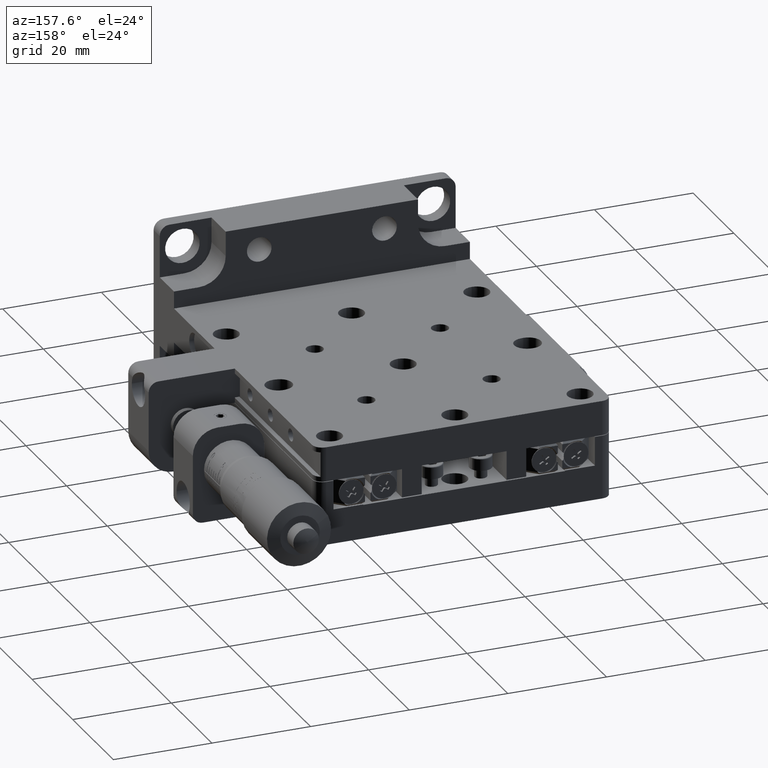
[diagram: clean part render]
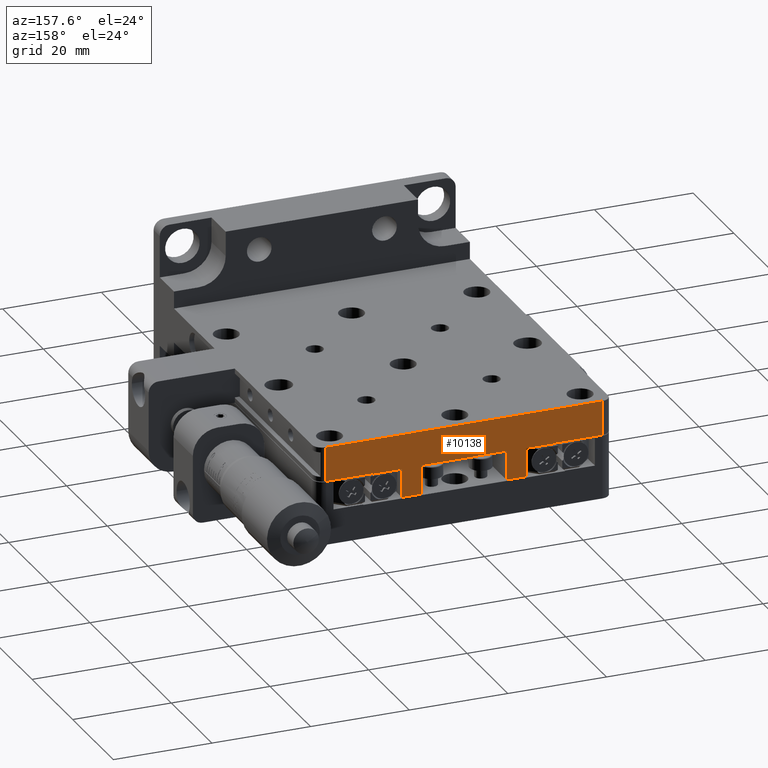
[diagram: same view with one face highlighted and labeled with its STEP entity id]
A machine part, auxiliary view. The second image highlights one B-rep face of the part: STEP entity #10138.
In plain terms, the highlighted planar face has unit normal (-0, 1, -0).
Its self-contained STEP definition (entity closure, byte-faithful):
#151 = VERTEX_POINT ( 'NONE', #15836 ) ;
#286 = VECTOR ( 'NONE', #4870, 1000.000000000000000 ) ;
#699 = CARTESIAN_POINT ( 'NONE',  ( 8.599999999999967700, 69.99999999999998600, -9.399999999999266700 ) ) ;
#899 = LINE ( 'NONE', #29757, #60400 ) ;
#2182 = VECTOR ( 'NONE', #54436, 1000.000000000000000 ) ;
#2881 = ORIENTED_EDGE ( 'NONE', *, *, #8117, .T. ) ;
#3014 = CARTESIAN_POINT ( 'NONE',  ( 27.99999999999986900, 70.00000000000000000, -3.499999999999330800 ) ) ;
#3249 = VERTEX_POINT ( 'NONE', #51164 ) ;
#3605 = EDGE_CURVE ( 'NONE', #24318, #8302, #47497, .T. ) ;
#4330 = VERTEX_POINT ( 'NONE', #10919 ) ;
#4547 = LINE ( 'NONE', #4885, #41151 ) ;
#4870 = DIRECTION ( 'NONE',  ( -1.000000000000000000, 1.026956297779326500E-015, 1.553259876652537500E-015 ) ) ;
#4885 = CARTESIAN_POINT ( 'NONE',  ( -28.00000000000012400, 69.99999999999974400, -6.499999999999231700 ) ) ;
#4995 = LINE ( 'NONE', #19263, #57904 ) ;
#5083 = VERTEX_POINT ( 'NONE', #47189 ) ;
#5163 = LINE ( 'NONE', #15059, #29339 ) ;
#5863 = LINE ( 'NONE', #50956, #52110 ) ;
#6262 = ORIENTED_EDGE ( 'NONE', *, *, #36282, .T. ) ;
#6682 = DIRECTION ( 'NONE',  ( 1.091490082325969300E-015, -1.299185760018475600E-014, -1.000000000000000000 ) ) ;
#8117 = EDGE_CURVE ( 'NONE', #56657, #3249, #46333, .T. ) ;
#8302 = VERTEX_POINT ( 'NONE', #34424 ) ;
#9169 = CARTESIAN_POINT ( 'NONE',  ( 18.59999999999987700, 70.00000000000000000, -3.499999999999314800 ) ) ;
#9301 = CARTESIAN_POINT ( 'NONE',  ( -30.00000000000012800, 70.00000000000000000, 3.500000000000775400 ) ) ;
#9697 = CARTESIAN_POINT ( 'NONE',  ( -30.00000000000012800, 70.00000000000000000, -3.499999999999244600 ) ) ;
#10138 = ADVANCED_FACE ( 'NONE', ( #35751 ), #38160, .T. ) ;
#10919 = CARTESIAN_POINT ( 'NONE',  ( -12.60000000000003300, 69.99999999999998600, -9.399999999999231200 ) ) ;
#12687 = VERTEX_POINT ( 'NONE', #16039 ) ;
#12964 = ORIENTED_EDGE ( 'NONE', *, *, #41318, .T. ) ;
#13732 = VERTEX_POINT ( 'NONE', #42866 ) ;
#13942 = DIRECTION ( 'NONE',  ( 1.091490082325969300E-015, -1.299185760018475600E-014, -1.000000000000000000 ) ) ;
#14262 = DIRECTION ( 'NONE',  ( -3.578595960186216000E-014, 1.299185760018481100E-014, 1.000000000000000000 ) ) ;
#14793 = CARTESIAN_POINT ( 'NONE',  ( 8.599999999999967700, 69.99999999999998600, -9.399999999999266700 ) ) ;
#14836 = DIRECTION ( 'NONE',  ( -1.000000000000000000, 1.026956297779323700E-015, 1.336419442155436600E-015 ) ) ;
#14872 = DIRECTION ( 'NONE',  ( -3.360297943721025000E-014, -1.299185760018473200E-014, -1.000000000000000000 ) ) ;
#14921 = EDGE_CURVE ( 'NONE', #5083, #17316, #5863, .T. ) ;
#15059 = CARTESIAN_POINT ( 'NONE',  ( 18.59999999999987700, 70.00000000000000000, -3.499999999999314800 ) ) ;
#15188 = EDGE_CURVE ( 'NONE', #26050, #4330, #45432, .T. ) ;
#15836 = CARTESIAN_POINT ( 'NONE',  ( -28.00000000000012400, 70.00000000000000000, 3.500000000000766900 ) ) ;
#16033 = VECTOR ( 'NONE', #51806, 1000.000000000000000 ) ;
#16039 = CARTESIAN_POINT ( 'NONE',  ( -28.00000000000012400, 70.00000000000000000, -3.499999999999259700 ) ) ;
#17316 = VERTEX_POINT ( 'NONE', #20414 ) ;
#18123 = LINE ( 'NONE', #9301, #41554 ) ;
#18312 = LINE ( 'NONE', #40882, #34388 ) ;
#18606 = LINE ( 'NONE', #27987, #286 ) ;
#18643 = VERTEX_POINT ( 'NONE', #14793 ) ;
#18864 = EDGE_LOOP ( 'NONE', ( #6262, #44819, #56817, #35884, #52523, #27605, #48957, #12964, #2881, #30112, #36512, #29694, #52823, #34588, #27556, #57187 ) ) ;
#19263 = CARTESIAN_POINT ( 'NONE',  ( -12.60000000000006400, 70.00000000000000000, -3.599999999999271800 ) ) ;
#19306 = DIRECTION ( 'NONE',  ( -1.091490082325969300E-015, 1.299185760018475600E-014, 1.000000000000000000 ) ) ;
#19616 = VECTOR ( 'NONE', #42003, 1000.000000000000000 ) ;
#20209 = CARTESIAN_POINT ( 'NONE',  ( 8.599999999999939200, 70.00000000000000000, -3.499999999999306800 ) ) ;
#20414 = CARTESIAN_POINT ( 'NONE',  ( -18.60000000000013300, 70.00000000000000000, -3.499999999999264600 ) ) ;
#20469 = LINE ( 'NONE', #699, #26357 ) ;
#20786 = EDGE_CURVE ( 'NONE', #13732, #5083, #18606, .T. ) ;
#21082 = CARTESIAN_POINT ( 'NONE',  ( -8.600000000000033400, 69.99999999999998600, -9.399999999999231200 ) ) ;
#21417 = DIRECTION ( 'NONE',  ( -1.000000000000000000, 1.026956297779326300E-015, 1.567715905619010800E-015 ) ) ;
#22035 = VECTOR ( 'NONE', #51810, 1000.000000000000000 ) ;
#23583 = CARTESIAN_POINT ( 'NONE',  ( 12.59999999999993600, 70.00000000000000000, -3.599999999999315300 ) ) ;
#24318 = VERTEX_POINT ( 'NONE', #36595 ) ;
#26050 = VERTEX_POINT ( 'NONE', #21082 ) ;
#26357 = VECTOR ( 'NONE', #19306, 1000.000000000000000 ) ;
#26559 = EDGE_CURVE ( 'NONE', #50608, #46215, #42656, .T. ) ;
#26972 = LINE ( 'NONE', #23583, #19616 ) ;
#27264 = VECTOR ( 'NONE', #21417, 1000.000000000000000 ) ;
#27487 = DIRECTION ( 'NONE',  ( 1.000000000000000000, -1.026956297779326300E-015, -1.567715905619010800E-015 ) ) ;
#27556 = ORIENTED_EDGE ( 'NONE', *, *, #33836, .T. ) ;
#27605 = ORIENTED_EDGE ( 'NONE', *, *, #29576, .T. ) ;
#27987 = CARTESIAN_POINT ( 'NONE',  ( -18.60000000000012900, 70.00000000000000000, -3.599999999999261600 ) ) ;
#28578 = LINE ( 'NONE', #56982, #22035 ) ;
#29339 = VECTOR ( 'NONE', #14872, 1000.000000000000000 ) ;
#29576 = EDGE_CURVE ( 'NONE', #8302, #38666, #26972, .T. ) ;
#29601 = EDGE_CURVE ( 'NONE', #4330, #13732, #4995, .T. ) ;
#29694 = ORIENTED_EDGE ( 'NONE', *, *, #29601, .T. ) ;
#29757 = CARTESIAN_POINT ( 'NONE',  ( -8.600000000000033400, 69.99999999999998600, -9.399999999999231200 ) ) ;
#30112 = ORIENTED_EDGE ( 'NONE', *, *, #31895, .T. ) ;
#31684 = VECTOR ( 'NONE', #56082, 1000.000000000000000 ) ;
#31895 = EDGE_CURVE ( 'NONE', #3249, #26050, #899, .T. ) ;
#31989 = EDGE_CURVE ( 'NONE', #151, #12687, #4547, .T. ) ;
#33836 = EDGE_CURVE ( 'NONE', #17316, #12687, #18312, .T. ) ;
#33972 = DIRECTION ( 'NONE',  ( -1.091490082325969300E-015, 1.299185760018476600E-014, 1.000000000000000000 ) ) ;
#34388 = VECTOR ( 'NONE', #49361, 1000.000000000000000 ) ;
#34424 = CARTESIAN_POINT ( 'NONE',  ( 12.59999999999993600, 70.00000000000000000, -3.599999999999315300 ) ) ;
#34588 = ORIENTED_EDGE ( 'NONE', *, *, #14921, .T. ) ;
#35078 = CARTESIAN_POINT ( 'NONE',  ( -12.60000000000003300, 69.99999999999998600, -9.399999999999231200 ) ) ;
#35751 = FACE_OUTER_BOUND ( 'NONE', #18864, .T. ) ;
#35884 = ORIENTED_EDGE ( 'NONE', *, *, #40828, .T. ) ;
#36282 = EDGE_CURVE ( 'NONE', #151, #49916, #18123, .T. ) ;
#36339 = EDGE_CURVE ( 'NONE', #38666, #18643, #42311, .T. ) ;
#36512 = ORIENTED_EDGE ( 'NONE', *, *, #15188, .T. ) ;
#36595 = CARTESIAN_POINT ( 'NONE',  ( 18.59999999999987400, 70.00000000000000000, -3.599999999999314900 ) ) ;
#38160 = PLANE ( 'NONE',  #55855 ) ;
#38666 = VERTEX_POINT ( 'NONE', #60066 ) ;
#39384 = DIRECTION ( 'NONE',  ( 1.091490082325969300E-015, -1.299185760018475600E-014, -1.000000000000000000 ) ) ;
#40828 = EDGE_CURVE ( 'NONE', #46215, #24318, #5163, .T. ) ;
#40882 = CARTESIAN_POINT ( 'NONE',  ( -30.00000000000012800, 70.00000000000000000, -3.499999999999244600 ) ) ;
#41151 = VECTOR ( 'NONE', #13942, 1000.000000000000000 ) ;
#41318 = EDGE_CURVE ( 'NONE', #18643, #56657, #20469, .T. ) ;
#41554 = VECTOR ( 'NONE', #27487, 1000.000000000000000 ) ;
#42003 = DIRECTION ( 'NONE',  ( 1.091490082325969300E-015, -1.299185760018476600E-014, -1.000000000000000000 ) ) ;
#42311 = LINE ( 'NONE', #57093, #54121 ) ;
#42656 = LINE ( 'NONE', #44958, #27264 ) ;
#42866 = CARTESIAN_POINT ( 'NONE',  ( -12.60000000000006400, 70.00000000000000000, -3.599999999999271800 ) ) ;
#43908 = CARTESIAN_POINT ( 'NONE',  ( 29.99999999999992500, 70.00000000000000000, 3.500000000000674100 ) ) ;
#44819 = ORIENTED_EDGE ( 'NONE', *, *, #53900, .F. ) ;
#44958 = CARTESIAN_POINT ( 'NONE',  ( -30.00000000000012800, 70.00000000000000000, -3.499999999999244600 ) ) ;
#45432 = LINE ( 'NONE', #35078, #2182 ) ;
#46215 = VERTEX_POINT ( 'NONE', #9169 ) ;
#46333 = LINE ( 'NONE', #9697, #31684 ) ;
#47189 = CARTESIAN_POINT ( 'NONE',  ( -18.60000000000012900, 70.00000000000000000, -3.599999999999261600 ) ) ;
#47497 = LINE ( 'NONE', #56580, #16033 ) ;
#48683 = DIRECTION ( 'NONE',  ( -1.026956297779301800E-015, 1.000000000000000000, -1.299185760018475800E-014 ) ) ;
#48957 = ORIENTED_EDGE ( 'NONE', *, *, #36339, .T. ) ;
#49361 = DIRECTION ( 'NONE',  ( -1.000000000000000000, 1.026956297779326300E-015, 1.567715905619010800E-015 ) ) ;
#49916 = VERTEX_POINT ( 'NONE', #53781 ) ;
#50608 = VERTEX_POINT ( 'NONE', #3014 ) ;
#50956 = CARTESIAN_POINT ( 'NONE',  ( -18.60000000000013300, 70.00000000000000000, -3.499999999999261900 ) ) ;
#51164 = CARTESIAN_POINT ( 'NONE',  ( -8.600000000000063600, 70.00000000000000000, -3.499999999999282800 ) ) ;
#51806 = DIRECTION ( 'NONE',  ( -1.000000000000000000, 1.026956297779320600E-015, 1.119579007658335200E-015 ) ) ;
#51810 = DIRECTION ( 'NONE',  ( -1.091490082325969300E-015, 1.299185760018475600E-014, 1.000000000000000000 ) ) ;
#52110 = VECTOR ( 'NONE', #14262, 1000.000000000000000 ) ;
#52523 = ORIENTED_EDGE ( 'NONE', *, *, #3605, .T. ) ;
#52823 = ORIENTED_EDGE ( 'NONE', *, *, #20786, .T. ) ;
#53781 = CARTESIAN_POINT ( 'NONE',  ( 27.99999999999986900, 70.00000000000000000, 3.500000000000689200 ) ) ;
#53900 = EDGE_CURVE ( 'NONE', #50608, #49916, #28578, .T. ) ;
#54121 = VECTOR ( 'NONE', #14836, 1000.000000000000000 ) ;
#54436 = DIRECTION ( 'NONE',  ( -1.000000000000000000, 1.026956297779323700E-015, 1.336419442155436600E-015 ) ) ;
#55855 = AXIS2_PLACEMENT_3D ( 'NONE', #43908, #48683, #6682 ) ;
#56082 = DIRECTION ( 'NONE',  ( -1.000000000000000000, 1.026956297779326300E-015, 1.567715905619010800E-015 ) ) ;
#56580 = CARTESIAN_POINT ( 'NONE',  ( 18.59999999999987400, 70.00000000000000000, -3.599999999999314900 ) ) ;
#56657 = VERTEX_POINT ( 'NONE', #20209 ) ;
#56817 = ORIENTED_EDGE ( 'NONE', *, *, #26559, .T. ) ;
#56982 = CARTESIAN_POINT ( 'NONE',  ( 27.99999999999986900, 69.99999999999974400, -6.499999999999318800 ) ) ;
#57093 = CARTESIAN_POINT ( 'NONE',  ( 12.59999999999996800, 69.99999999999998600, -9.399999999999266700 ) ) ;
#57187 = ORIENTED_EDGE ( 'NONE', *, *, #31989, .F. ) ;
#57904 = VECTOR ( 'NONE', #33972, 1000.000000000000000 ) ;
#60066 = CARTESIAN_POINT ( 'NONE',  ( 12.59999999999996800, 69.99999999999998600, -9.399999999999266700 ) ) ;
#60400 = VECTOR ( 'NONE', #39384, 1000.000000000000000 ) ;